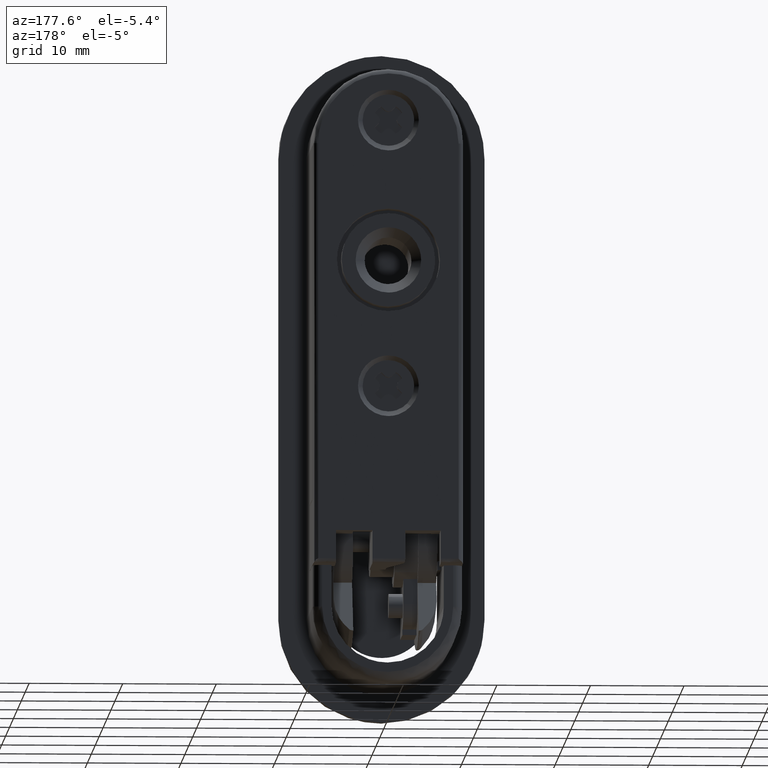
[diagram: clean part render]
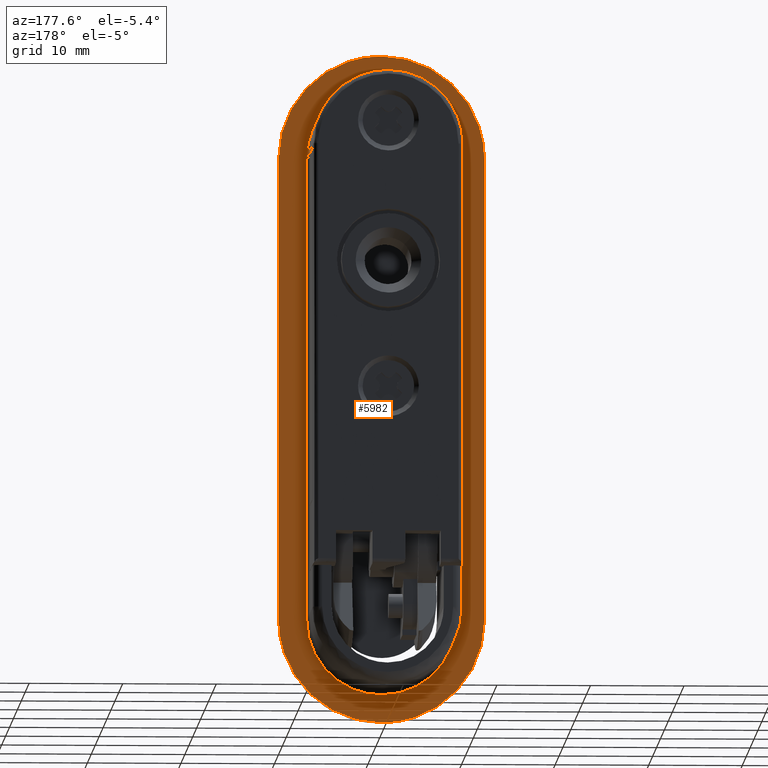
[diagram: same view with one face highlighted and labeled with its STEP entity id]
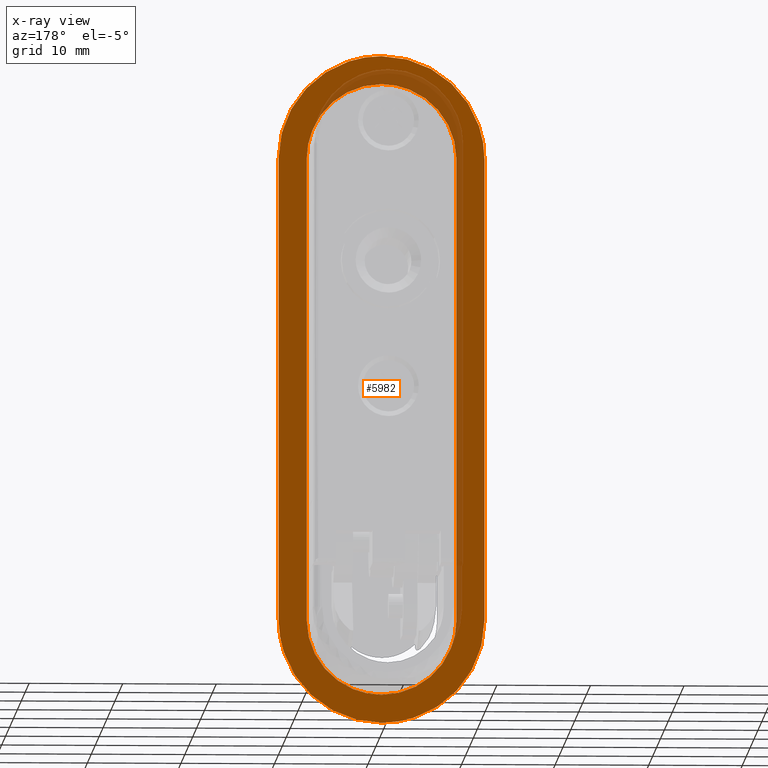
[diagram: x-ray of the same camera — body ghosted, the highlighted face saturated]
A machine part, auxiliary view. The second image highlights one B-rep face of the part: STEP entity #5982.
The next image is the same camera in x-ray: the body ghosted, the highlighted face saturated — about 13% of this face is hidden behind the body in this view.
In plain terms, the highlighted face is a freeform B-spline surface patch.
Its self-contained STEP definition (entity closure, byte-faithful):
#3520=CARTESIAN_POINT('',(10.999999999994600,-5.499999999979410,-8.000000000134829));
#3521=VERTEX_POINT('',#3520);
#3563=CARTESIAN_POINT('',(-11.000000000005400,-5.499999999979409,-8.000000000134840));
#3564=VERTEX_POINT('',#3563);
#3570=CARTESIAN_POINT('',(0.000000923568269,-5.499999999979409,-19.000000000134790));
#3571=VERTEX_POINT('',#3570);
#3572=CARTESIAN_POINT('',(-11.000000000005400,-5.499999999979409,-8.000000000134840));
#3573=CARTESIAN_POINT('',(-11.000030161377440,-5.499999999979405,-8.539962039730204));
#3574=CARTESIAN_POINT('',(-10.921970303124130,-5.499999999979415,-9.597370276311592));
#3575=CARTESIAN_POINT('',(-10.537012977357261,-5.499999999979419,-11.337105652414181));
#3576=CARTESIAN_POINT('',(-9.897770809083264,-5.499999999979408,-12.907502742633040));
#3577=CARTESIAN_POINT('',(-9.054814735561951,-5.499999999979363,-14.294370149887390));
#3578=CARTESIAN_POINT('',(-8.160336169947266,-5.499999999979499,-15.426183769853401));
#3579=CARTESIAN_POINT('',(-7.218256880607972,-5.499999999979301,-16.334204713130841));
#3580=CARTESIAN_POINT('',(-6.107113413527992,-5.499999999979395,-17.179609673308260));
#3581=CARTESIAN_POINT('',(-5.019556852174374,-5.499999999979553,-17.822435370004420));
#3582=CARTESIAN_POINT('',(-3.694094496300018,-5.499999999979296,-18.390599066601592));
#3583=CARTESIAN_POINT('',(-2.069795899458018,-5.499999999979506,-18.861675334109108));
#3584=CARTESIAN_POINT('',(-0.787451271645315,-5.499999999979372,-19.000144464112250));
#3585=CARTESIAN_POINT('',(0.000000923568269,-5.499999999979409,-19.000000000134790));
#3586=B_SPLINE_CURVE_WITH_KNOTS('',3,(#3572,#3573,#3574,#3575,#3576,#3577,#3578,#3579,#3580,#3581,#3582,#3583,#3584,#3585),.UNSPECIFIED.,.F.,.U.,(4,1,1,1,1,1,1,1,1,1,1,4),(0.000000051580290,1.619884013863612,3.172268629520199,5.332129037538360,6.682040986488863,8.031943022242047,9.651799159897244,10.596753670600240,12.216641169101591,13.431559821334480,14.916466327616209,17.278787220646631),.UNSPECIFIED.);
#3587=EDGE_CURVE('',#3564,#3571,#3586,.T.);
#3589=CARTESIAN_POINT('',(0.000000923568269,-5.499999999979409,-19.000000000134790));
#3590=CARTESIAN_POINT('',(0.764953909143937,-5.499999999979435,-19.000128513667299));
#3591=CARTESIAN_POINT('',(1.844819279418092,-5.499999999979392,-18.886876064402600));
#3592=CARTESIAN_POINT('',(3.567856311129167,-5.499999999979414,-18.444054295123340));
#3593=CARTESIAN_POINT('',(4.926766610434977,-5.499999999979397,-17.886066097190810));
#3594=CARTESIAN_POINT('',(6.294371200323755,-5.499999999979444,-17.054814243030620));
#3595=CARTESIAN_POINT('',(7.302375533615876,-5.499999999979356,-16.258159540192409));
#3596=CARTESIAN_POINT('',(8.325054821710772,-5.499999999979456,-15.241766985579780));
#3597=CARTESIAN_POINT('',(9.423159815917460,-5.499999999979320,-13.807866902428239));
#3598=CARTESIAN_POINT('',(10.227398665129011,-5.499999999979444,-12.185401217924239));
#3599=CARTESIAN_POINT('',(10.841686917519270,-5.499999999979375,-10.182240823422941));
#3600=CARTESIAN_POINT('',(11.000259639434420,-5.499999999979279,-8.899965915950448));
#3601=CARTESIAN_POINT('',(10.999999999994600,-5.499999999979410,-8.000000000134829));
#3602=B_SPLINE_CURVE_WITH_KNOTS('',3,(#3589,#3590,#3591,#3592,#3593,#3594,#3595,#3596,#3597,#3598,#3599,#3600,#3601),.UNSPECIFIED.,.F.,.U.,(4,1,1,1,1,1,1,1,1,1,4),(0.000000051660781,2.294822985246485,3.239772054346130,5.332128716246332,6.682040583717827,8.031942537731533,9.179326149825958,11.001713866703190,13.431559011938930,14.578977057863620,17.278786179562260),.UNSPECIFIED.);
#3603=EDGE_CURVE('',#3571,#3521,#3602,.T.);
#3615=CARTESIAN_POINT('',(10.999999999994600,-5.499999999979410,41.499999999867853));
#3616=VERTEX_POINT('',#3615);
#3628=CARTESIAN_POINT('',(10.999999999994600,-5.499999999979410,41.499999999867853));
#3629=CARTESIAN_POINT('',(10.999999999994600,-5.499999999979410,-8.000000000134829));
#3630=QUASI_UNIFORM_CURVE('',1,(#3628,#3629),.UNSPECIFIED.,.F.,.U.);
#3631=EDGE_CURVE('',#3616,#3521,#3630,.T.);
#3656=CARTESIAN_POINT('',(-11.000000000005400,-5.499999999979409,41.499999999867853));
#3657=VERTEX_POINT('',#3656);
#3698=CARTESIAN_POINT('',(-0.000000923579070,-5.499999999979409,52.499999999867804));
#3699=VERTEX_POINT('',#3698);
#3700=CARTESIAN_POINT('',(10.999999999994600,-5.499999999979410,41.499999999867853));
#3701=CARTESIAN_POINT('',(11.000125118089141,-5.499999999979409,42.264950972650702));
#3702=CARTESIAN_POINT('',(10.851525778188760,-5.499999999979413,43.682294016624041));
#3703=CARTESIAN_POINT('',(10.308457315458289,-5.499999999979405,45.453073320848347));
#3704=CARTESIAN_POINT('',(9.629520210077601,-5.499999999979418,46.877086491460190));
#3705=CARTESIAN_POINT('',(8.789091369195292,-5.499999999979410,48.186502886523087));
#3706=CARTESIAN_POINT('',(7.577506916112957,-5.499999999979340,49.556775980810549));
#3707=CARTESIAN_POINT('',(5.888990951703999,-5.499999999979406,50.882949340269867));
#3708=CARTESIAN_POINT('',(4.185400123075207,-5.499999999979398,51.727395646541481));
#3709=CARTESIAN_POINT('',(2.182241235247723,-5.499999999979505,52.341700343873143));
#3710=CARTESIAN_POINT('',(0.899963074443024,-5.499999999979348,52.500243633204590));
#3711=CARTESIAN_POINT('',(-0.000000923579070,-5.499999999979409,52.499999999867804));
#3712=B_SPLINE_CURVE_WITH_KNOTS('',3,(#3700,#3701,#3702,#3703,#3704,#3705,#3706,#3707,#3708,#3709,#3710,#3711),.UNSPECIFIED.,.F.,.U.,(4,1,1,1,1,1,1,1,1,4),(0.000000051580841,2.294823123470428,4.252201719613618,5.534621511847281,7.019527719179237,8.909352234073483,11.001714529881109,13.431559821334760,14.578977936549551,17.278787220646642),.UNSPECIFIED.);
#3713=EDGE_CURVE('',#3616,#3699,#3712,.T.);
#3715=CARTESIAN_POINT('',(-0.000000923579070,-5.499999999979409,52.499999999867804));
#3716=CARTESIAN_POINT('',(-0.967471728172340,-5.499999999979389,52.500337041173310));
#3717=CARTESIAN_POINT('',(-2.384687322044494,-5.499999999979438,52.311743859079897));
#3718=CARTESIAN_POINT('',(-4.264308106961689,-5.499999999979396,51.677911896263893));
#3719=CARTESIAN_POINT('',(-5.495677434549806,-5.499999999979321,51.062831718363043));
#3720=CARTESIAN_POINT('',(-6.694354182535419,-5.499999999979509,50.261880375341171));
#3721=CARTESIAN_POINT('',(-7.824514800827727,-5.499999999979285,49.293062136299831));
#3722=CARTESIAN_POINT('',(-9.073539967158819,-5.499999999979496,47.836250421710197));
#3723=CARTESIAN_POINT('',(-10.071529940404981,-5.499999999979360,46.087024605362643));
#3724=CARTESIAN_POINT('',(-10.813915846345550,-5.499999999979465,43.907226562447242));
#3725=CARTESIAN_POINT('',(-11.000242042958989,-5.499999999979373,42.399958639015630));
#3726=CARTESIAN_POINT('',(-11.000000000005400,-5.499999999979409,41.499999999867853));
#3727=B_SPLINE_CURVE_WITH_KNOTS('',3,(#3715,#3716,#3717,#3718,#3719,#3720,#3721,#3722,#3723,#3724,#3725,#3726),.UNSPECIFIED.,.F.,.U.,(4,1,1,1,1,1,1,1,1,4),(0.000000051639148,2.902287287821155,4.252201463459832,5.939590898229893,7.019527296232157,8.571929140958526,10.394250355262921,12.756602379925550,14.578977057862209,17.278786179562260),.UNSPECIFIED.);
#3728=EDGE_CURVE('',#3699,#3657,#3727,.T.);
#3745=CARTESIAN_POINT('',(-11.000000000005400,-5.499999999979409,-8.000000000134840));
#3746=CARTESIAN_POINT('',(-11.000000000005400,-5.499999999979409,41.499999999867853));
#3747=QUASI_UNIFORM_CURVE('',1,(#3745,#3746),.UNSPECIFIED.,.F.,.U.);
#3748=EDGE_CURVE('',#3564,#3657,#3747,.T.);
#5863=CARTESIAN_POINT('',(7.999999999999769,-5.499999999979410,41.500000000014012));
#5864=VERTEX_POINT('',#5863);
#5870=CARTESIAN_POINT('',(7.999999999999769,-5.499999999979410,-7.999999999989909));
#5871=VERTEX_POINT('',#5870);
#5872=CARTESIAN_POINT('',(7.999999999999769,-5.499999999979410,-7.999999999989909));
#5873=CARTESIAN_POINT('',(7.999999999999769,-5.499999999979410,41.500000000014012));
#5874=QUASI_UNIFORM_CURVE('',1,(#5872,#5873),.UNSPECIFIED.,.F.,.U.);
#5875=EDGE_CURVE('',#5871,#5864,#5874,.T.);
#5892=CARTESIAN_POINT('',(-12.098899957365131,-5.499999999979419,56.071424861287063));
#5893=CARTESIAN_POINT('',(12.098900547440319,-5.499999999979421,56.071424861287063));
#5894=CARTESIAN_POINT('',(-12.098899957365131,-5.499999999979419,-22.571426779333489));
#5895=CARTESIAN_POINT('',(12.098900547440319,-5.499999999979421,-22.571426779333489));
#5896=B_SPLINE_SURFACE_WITH_KNOTS('',1,1,((#5892,#5894),(#5893,#5895)),.UNSPECIFIED.,.F.,.F.,.U.,(2,2),(2,2),(0.0,24.197800504805450),(0.0,78.642851640620549),.UNSPECIFIED.);
#5897=ORIENTED_EDGE('',*,*,#3748,.T.);
#5898=ORIENTED_EDGE('',*,*,#3728,.F.);
#5899=ORIENTED_EDGE('',*,*,#3713,.F.);
#5900=ORIENTED_EDGE('',*,*,#3631,.T.);
#5901=ORIENTED_EDGE('',*,*,#3603,.F.);
#5902=ORIENTED_EDGE('',*,*,#3587,.F.);
#5903=EDGE_LOOP('',(#5897,#5898,#5899,#5900,#5901,#5902));
#5904=FACE_OUTER_BOUND('',#5903,.T.);
#5905=ORIENTED_EDGE('',*,*,#5875,.T.);
#5906=CARTESIAN_POINT('',(0.000000526764419,-5.499999999979409,49.500000000013763));
#5907=VERTEX_POINT('',#5906);
#5908=CARTESIAN_POINT('',(0.000000526764419,-5.499999999979409,49.500000000013763));
#5909=CARTESIAN_POINT('',(0.523601573337445,-5.499999999979417,49.500062729617952));
#5910=CARTESIAN_POINT('',(1.308969093157237,-5.499999999979402,49.422611123983494));
#5911=CARTESIAN_POINT('',(2.516714329253980,-5.499999999979414,49.120085364624231));
#5912=CARTESIAN_POINT('',(3.492638191304034,-5.499999999979400,48.729814705084067));
#5913=CARTESIAN_POINT('',(4.569055630807238,-5.499999999979429,48.102441952174537));
#5914=CARTESIAN_POINT('',(5.543542938657486,-5.499999999979366,47.322562827171112));
#5915=CARTESIAN_POINT('',(6.370301077087095,-5.499999999979417,46.387521249406973));
#5916=CARTESIAN_POINT('',(7.085498027817028,-5.499999999979401,45.288223063995112));
#5917=CARTESIAN_POINT('',(7.618560389026901,-5.499999999979405,44.085756806622321));
#5918=CARTESIAN_POINT('',(7.937241287018256,-5.499999999979423,42.743535591864124));
#5919=CARTESIAN_POINT('',(8.000015884606954,-5.499999999979405,41.892691796943552));
#5920=CARTESIAN_POINT('',(7.999999999999769,-5.499999999979410,41.500000000014012));
#5921=B_SPLINE_CURVE_WITH_KNOTS('',3,(#5908,#5909,#5910,#5911,#5912,#5913,#5914,#5915,#5916,#5917,#5918,#5919,#5920),.UNSPECIFIED.,.F.,.U.,(4,1,1,1,1,1,1,1,1,1,4),(0.000000021416225,1.570796055825310,2.356205250195757,3.730670096314077,4.712433524036505,6.086880410502674,7.461308891528283,8.443074371466969,10.013895630637400,11.388364876374141,12.566449166105830),.UNSPECIFIED.);
#5922=EDGE_CURVE('',#5907,#5864,#5921,.T.);
#5923=ORIENTED_EDGE('',*,*,#5922,.F.);
#5924=CARTESIAN_POINT('',(-8.0,-5.499999999979419,41.500000000014012));
#5925=VERTEX_POINT('',#5924);
#5926=CARTESIAN_POINT('',(-8.0,-5.499999999979419,41.500000000014012));
#5927=CARTESIAN_POINT('',(-8.000017401348076,-5.499999999979417,41.892695479714178));
#5928=CARTESIAN_POINT('',(-7.937242352274161,-5.499999999979426,42.743543376416582));
#5929=CARTESIAN_POINT('',(-7.648865154430903,-5.499999999979403,43.957907616513033));
#5930=CARTESIAN_POINT('',(-7.096384543796958,-5.499999999979433,45.291866576104177));
#5931=CARTESIAN_POINT('',(-6.342285936101936,-5.499999999979416,46.450955797723438));
#5932=CARTESIAN_POINT('',(-5.256214680053124,-5.499999999979413,47.591727638947042));
#5933=CARTESIAN_POINT('',(-4.055442136435119,-5.499999999979418,48.459662946769463));
#5934=CARTESIAN_POINT('',(-2.796990743433639,-5.499999999979406,49.026668257385850));
#5935=CARTESIAN_POINT('',(-1.472570234018032,-5.499999999979413,49.401942196154558));
#5936=CARTESIAN_POINT('',(-0.589060694152885,-5.499999999979411,49.500106018109733));
#5937=CARTESIAN_POINT('',(0.000000526764419,-5.499999999979409,49.500000000013763));
#5938=B_SPLINE_CURVE_WITH_KNOTS('',3,(#5926,#5927,#5928,#5929,#5930,#5931,#5932,#5933,#5934,#5935,#5936,#5937),.UNSPECIFIED.,.F.,.U.,(4,1,1,1,1,1,1,1,1,4),(0.000000021226569,1.178095066512023,2.552560466939220,3.730670272418177,5.497841824168526,6.675909990069447,8.443074770325174,9.915719297320695,10.799293670328471,12.566449759895960),.UNSPECIFIED.);
#5939=EDGE_CURVE('',#5925,#5907,#5938,.T.);
#5940=ORIENTED_EDGE('',*,*,#5939,.F.);
#5941=CARTESIAN_POINT('',(-8.000000000002562,-5.499999999979409,-7.999999999989509));
#5942=VERTEX_POINT('',#5941);
#5943=CARTESIAN_POINT('',(-8.0,-5.499999999979419,41.500000000014012));
#5944=CARTESIAN_POINT('',(-8.000000000002562,-5.499999999979409,-7.999999999989509));
#5945=QUASI_UNIFORM_CURVE('',1,(#5943,#5944),.UNSPECIFIED.,.F.,.U.);
#5946=EDGE_CURVE('',#5925,#5942,#5945,.T.);
#5947=ORIENTED_EDGE('',*,*,#5946,.T.);
#5948=CARTESIAN_POINT('',(2.555263E-009,-5.499999999979409,-15.999999999989679));
#5949=VERTEX_POINT('',#5948);
#5950=CARTESIAN_POINT('',(2.555263E-009,-5.499999999979409,-15.999999999989679));
#5951=CARTESIAN_POINT('',(-0.392696191003880,-5.499999999979417,-16.000018228220039));
#5952=CARTESIAN_POINT('',(-1.243542607495554,-5.499999999979405,-15.937241482479211));
#5953=CARTESIAN_POINT('',(-2.457915600246298,-5.499999999979410,-15.648877386963550));
#5954=CARTESIAN_POINT('',(-3.549281570217420,-5.499999999979408,-15.196766912245160));
#5955=CARTESIAN_POINT('',(-4.625728468280585,-5.499999999979386,-14.569455354418650));
#5956=CARTESIAN_POINT('',(-5.642474683520280,-5.499999999979421,-13.735040012082051));
#5957=CARTESIAN_POINT('',(-6.636414121436449,-5.499999999979445,-12.553809168403490));
#5958=CARTESIAN_POINT('',(-7.310168075535778,-5.499999999979334,-11.347253619508290));
#5959=CARTESIAN_POINT('',(-7.853148609524454,-5.499999999979520,-9.799740238691614));
#5960=CARTESIAN_POINT('',(-8.000282860848834,-5.499999999979337,-8.719984270569936));
#5961=CARTESIAN_POINT('',(-8.000000000002562,-5.499999999979409,-7.999999999989509));
#5962=B_SPLINE_CURVE_WITH_KNOTS('',3,(#5950,#5951,#5952,#5953,#5954,#5955,#5956,#5957,#5958,#5959,#5960,#5961),.UNSPECIFIED.,.F.,.U.,(4,1,1,1,1,1,1,1,1,4),(0.000000021317030,1.178095038869616,2.552560406980430,3.730670184793175,4.712433635873985,6.283224744091799,7.657664915824316,9.326661496953975,10.406599643651051,12.566449464443391),.UNSPECIFIED.);
#5963=EDGE_CURVE('',#5949,#5942,#5962,.T.);
#5964=ORIENTED_EDGE('',*,*,#5963,.F.);
#5965=CARTESIAN_POINT('',(7.999999999999769,-5.499999999979410,-7.999999999989909));
#5966=CARTESIAN_POINT('',(8.000270937337850,-5.499999999979405,-8.719982732890124));
#5967=CARTESIAN_POINT('',(7.866554428511551,-5.499999999979419,-9.701587383563755));
#5968=CARTESIAN_POINT('',(7.434832306560348,-5.499999999979407,-11.008231206909681));
#5969=CARTESIAN_POINT('',(6.957861731212261,-5.499999999979404,-12.016810585790260));
#5970=CARTESIAN_POINT('',(6.326061762850588,-5.499999999979439,-12.937664944688599));
#5971=CARTESIAN_POINT('',(5.577942118721508,-5.499999999979367,-13.763063574412760));
#5972=CARTESIAN_POINT('',(4.733175133574169,-5.499999999979422,-14.491802728335770));
#5973=CARTESIAN_POINT('',(3.558720420921381,-5.499999999979542,-15.215518496667841));
#5974=CARTESIAN_POINT('',(1.963385233993530,-5.499999999979280,-15.830945930178350));
#5975=CARTESIAN_POINT('',(0.719971252035029,-5.499999999979463,-16.000255116828850));
#5976=CARTESIAN_POINT('',(2.555263E-009,-5.499999999979409,-15.999999999989679));
#5977=B_SPLINE_CURVE_WITH_KNOTS('',3,(#5965,#5966,#5967,#5968,#5969,#5970,#5971,#5972,#5973,#5974,#5975,#5976),.UNSPECIFIED.,.F.,.U.,(4,1,1,1,1,1,1,1,1,4),(0.000000021317176,2.159849362063106,2.945260475573445,4.123367280659872,5.497841693797952,6.283224740226188,7.461309067020115,8.835778345080653,10.406599641264201,12.566449461561209),.UNSPECIFIED.);
#5978=EDGE_CURVE('',#5871,#5949,#5977,.T.);
#5979=ORIENTED_EDGE('',*,*,#5978,.F.);
#5980=EDGE_LOOP('',(#5905,#5923,#5940,#5947,#5964,#5979));
#5981=FACE_BOUND('',#5980,.T.);
#5982=ADVANCED_FACE('',(#5904,#5981),#5896,.T.);